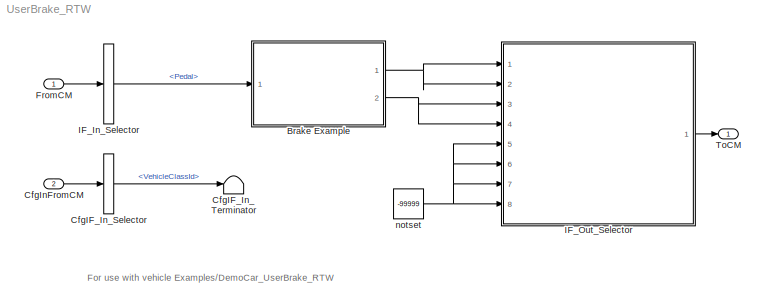
MODEL UserBrake_RTW
KIND model
CONFIG InitFcn = vehicle = 'Car'; if ~length(which('cmcmd')), cmenv; end\nUserBrake_RTW_bus
CONFIG PreLoadFcn = vehicle = 'Car'; if ~length(which('cmcmd')), cmenv; end\nUserBrake_RTW_bus
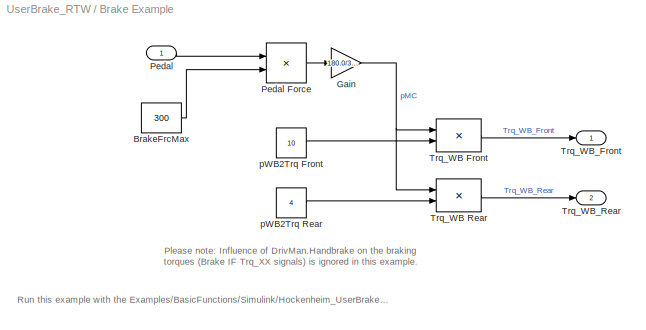
BLOCK [SubSystem] Brake Example
  Ports = [1, 2]
  RequestExecContextInheritance = off
  SID = 29
  Variant = off
BLOCK [Constant] Brake Example/BrakeFrcMax
  SID = 31
  Value = 300
BLOCK [Gain] Brake Example/Gain
  Gain = 180.0/300.0
  SID = 32
BLOCK [Inport] Brake Example/Pedal
  IconDisplay = Port number
  SID = 30
BLOCK [Product] Brake Example/Pedal Force
  Ports = [2, 1]
  RndMeth = Floor
  SID = 33
BLOCK [Product] Brake Example/Trq_WB Front
  Ports = [2, 1]
  RndMeth = Floor
  SID = 34
BLOCK [Product] Brake Example/Trq_WB Rear
  Ports = [2, 1]
  RndMeth = Floor
  SID = 35
BLOCK [Outport] Brake Example/Trq_WB_Front
  IconDisplay = Port number
  SID = 38
BLOCK [Outport] Brake Example/Trq_WB_Rear
  IconDisplay = Port number
  Port = 2
  SID = 39
BLOCK [Constant] Brake Example/pWB2Trq Front
  SID = 36
  Value = 10
BLOCK [Constant] Brake Example/pWB2Trq Rear
  SID = 37
  Value = 4
BLOCK [BusSelector] CfgIF_In_Selector
  OutputSignals = VehicleClassId
  Ports = [1, 1]
  SID = 9
BLOCK [Terminator] CfgIF_In_Terminator
  SID = 10
BLOCK [Inport] CfgInFromCM
  IconDisplay = Port number
  OutDataTypeStr = Bus: cmBrakeCfgIn
  Port = 2
  SID = 8
BLOCK [Inport] FromCM
  IconDisplay = Port number
  OutDataTypeStr = Bus: cmBrakeIn
  SID = 1
BLOCK [BusSelector] IF_In_Selector
  OutputSignals = Pedal
  Ports = [1, 1]
  SID = 2
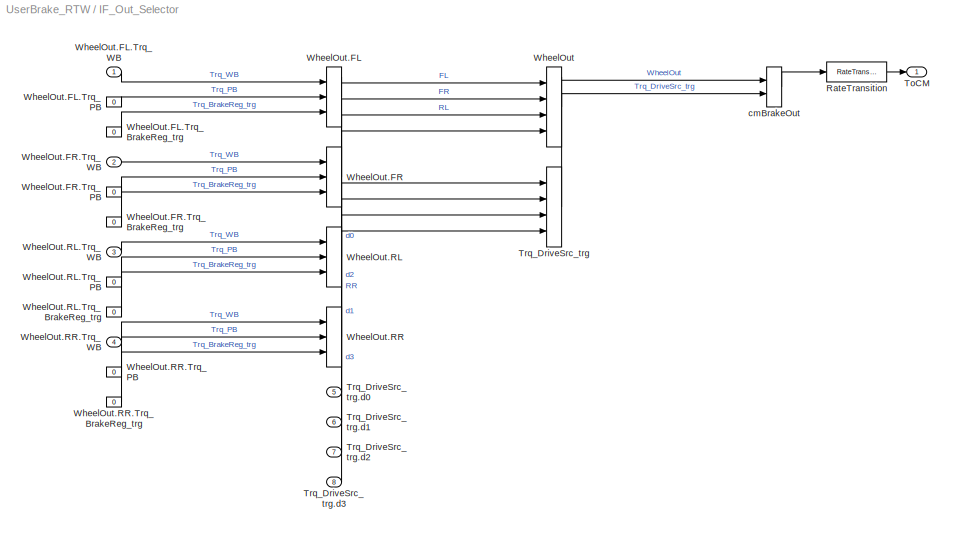
BLOCK [SubSystem] IF_Out_Selector
  OpenFcn = cmSignalSelect('SignalSelection_CB',gcb)
  Ports = [8, 1]
  RequestExecContextInheritance = off
  SID = 48
  UserData = DataTag0
  UserDataPersistent = on
  Variant = off
BLOCK [RateTransition] IF_Out_Selector/RateTransition
  OutPortSampleTime = str2num(get_param(bdroot,'FixedStep'))
  SID = 49
BLOCK [Outport] IF_Out_Selector/ToCM
  IconDisplay = Port number
  SID = 73
BLOCK [BusCreator] IF_Out_Selector/Trq_DriveSrc_trg
  InheritFromInputs = on
  Inputs = 4
  Ports = [4, 1]
  SID = 50
BLOCK [Inport] IF_Out_Selector/Trq_DriveSrc_trg.d0
  IconDisplay = Port number
  Port = 5
  SID = 78
BLOCK [Inport] IF_Out_Selector/Trq_DriveSrc_trg.d1
  IconDisplay = Port number
  Port = 6
  SID = 79
BLOCK [Inport] IF_Out_Selector/Trq_DriveSrc_trg.d2
  IconDisplay = Port number
  Port = 7
  SID = 80
BLOCK [Inport] IF_Out_Selector/Trq_DriveSrc_trg.d3
  IconDisplay = Port number
  Port = 8
  SID = 81
BLOCK [BusCreator] IF_Out_Selector/WheelOut
  InheritFromInputs = on
  Inputs = 4
  Ports = [4, 1]
  SID = 55
BLOCK [BusCreator] IF_Out_Selector/WheelOut.FL
  InheritFromInputs = on
  Inputs = 3
  Ports = [3, 1]
  SID = 56
BLOCK [Constant] IF_Out_Selector/WheelOut.FL.Trq_BrakeReg_trg
  SID = 57
  Value = 0
BLOCK [Constant] IF_Out_Selector/WheelOut.FL.Trq_PB
  SID = 58
  Value = 0
BLOCK [Inport] IF_Out_Selector/WheelOut.FL.Trq_WB
  IconDisplay = Port number
  SID = 74
BLOCK [BusCreator] IF_Out_Selector/WheelOut.FR
  InheritFromInputs = on
  Inputs = 3
  Ports = [3, 1]
  SID = 60
BLOCK [Constant] IF_Out_Selector/WheelOut.FR.Trq_BrakeReg_trg
  SID = 61
  Value = 0
BLOCK [Constant] IF_Out_Selector/WheelOut.FR.Trq_PB
  SID = 62
  Value = 0
BLOCK [Inport] IF_Out_Selector/WheelOut.FR.Trq_WB
  IconDisplay = Port number
  Port = 2
  SID = 75
BLOCK [BusCreator] IF_Out_Selector/WheelOut.RL
  InheritFromInputs = on
  Inputs = 3
  Ports = [3, 1]
  SID = 64
BLOCK [Constant] IF_Out_Selector/WheelOut.RL.Trq_BrakeReg_trg
  SID = 65
  Value = 0
BLOCK [Constant] IF_Out_Selector/WheelOut.RL.Trq_PB
  SID = 66
  Value = 0
BLOCK [Inport] IF_Out_Selector/WheelOut.RL.Trq_WB
  IconDisplay = Port number
  Port = 3
  SID = 76
BLOCK [BusCreator] IF_Out_Selector/WheelOut.RR
  InheritFromInputs = on
  Inputs = 3
  Ports = [3, 1]
  SID = 68
BLOCK [Constant] IF_Out_Selector/WheelOut.RR.Trq_BrakeReg_trg
  SID = 69
  Value = 0
BLOCK [Constant] IF_Out_Selector/WheelOut.RR.Trq_PB
  SID = 70
  Value = 0
BLOCK [Inport] IF_Out_Selector/WheelOut.RR.Trq_WB
  IconDisplay = Port number
  Port = 4
  SID = 77
BLOCK [BusCreator] IF_Out_Selector/cmBrakeOut
  InheritFromInputs = on
  Inputs = 2
  Ports = [2, 1]
  SID = 72
BLOCK [Outport] ToCM
  IconDisplay = Port number
  OutDataTypeStr = Bus: cmBrakeOut
  SID = 4
BLOCK [Constant] notset
  SID = 82
  Value = -99999
ANNOTATION (root): For use with vehicle Examples/DemoCar_UserBrake_RTW
ANNOTATION Brake Example: Please note: Influence of DrivMan.Handbrake on the braking\ntorques (Brake IF Trq_XX signals) is ignored in this example.
ANNOTATION Brake Example: Run this example with the Examples/BasicFunctions/Simulink/Hockenheim_UserBrake_RTW testrun.
LINE Brake Example/BrakeFrcMax:1 -> Brake Example/Pedal Force:2
NET Brake Example/Gain:1 -> Brake Example/Trq_WB Front:1, Brake Example/Trq_WB Rear:1
LINE Brake Example/Pedal Force:1 -> Brake Example/Gain:1
LINE Brake Example/Pedal:1 -> Brake Example/Pedal Force:1
LINE Brake Example/Trq_WB Front:1 -> Brake Example/Trq_WB_Front:1
LINE Brake Example/Trq_WB Rear:1 -> Brake Example/Trq_WB_Rear:1
LINE Brake Example/pWB2Trq Front:1 -> Brake Example/Trq_WB Front:2
LINE Brake Example/pWB2Trq Rear:1 -> Brake Example/Trq_WB Rear:2
NET Brake Example:1 -> IF_Out_Selector:1, IF_Out_Selector:2
NET Brake Example:2 -> IF_Out_Selector:3, IF_Out_Selector:4
LINE CfgIF_In_Selector:1 -> CfgIF_In_Terminator:1
LINE CfgInFromCM:1 -> CfgIF_In_Selector:1
LINE FromCM:1 -> IF_In_Selector:1
LINE IF_In_Selector:1 -> Brake Example:1
LINE IF_Out_Selector/RateTransition:1 -> IF_Out_Selector/ToCM:1
LINE IF_Out_Selector/Trq_DriveSrc_trg.d0:1 -> IF_Out_Selector/Trq_DriveSrc_trg:1
LINE IF_Out_Selector/Trq_DriveSrc_trg.d1:1 -> IF_Out_Selector/Trq_DriveSrc_trg:2
LINE IF_Out_Selector/Trq_DriveSrc_trg.d2:1 -> IF_Out_Selector/Trq_DriveSrc_trg:3
LINE IF_Out_Selector/Trq_DriveSrc_trg.d3:1 -> IF_Out_Selector/Trq_DriveSrc_trg:4
LINE IF_Out_Selector/Trq_DriveSrc_trg:1 -> IF_Out_Selector/cmBrakeOut:2
LINE IF_Out_Selector/WheelOut.FL.Trq_BrakeReg_trg:1 -> IF_Out_Selector/WheelOut.FL:3
LINE IF_Out_Selector/WheelOut.FL.Trq_PB:1 -> IF_Out_Selector/WheelOut.FL:2
LINE IF_Out_Selector/WheelOut.FL.Trq_WB:1 -> IF_Out_Selector/WheelOut.FL:1
LINE IF_Out_Selector/WheelOut.FL:1 -> IF_Out_Selector/WheelOut:1
LINE IF_Out_Selector/WheelOut.FR.Trq_BrakeReg_trg:1 -> IF_Out_Selector/WheelOut.FR:3
LINE IF_Out_Selector/WheelOut.FR.Trq_PB:1 -> IF_Out_Selector/WheelOut.FR:2
LINE IF_Out_Selector/WheelOut.FR.Trq_WB:1 -> IF_Out_Selector/WheelOut.FR:1
LINE IF_Out_Selector/WheelOut.FR:1 -> IF_Out_Selector/WheelOut:2
LINE IF_Out_Selector/WheelOut.RL.Trq_BrakeReg_trg:1 -> IF_Out_Selector/WheelOut.RL:3
LINE IF_Out_Selector/WheelOut.RL.Trq_PB:1 -> IF_Out_Selector/WheelOut.RL:2
LINE IF_Out_Selector/WheelOut.RL.Trq_WB:1 -> IF_Out_Selector/WheelOut.RL:1
LINE IF_Out_Selector/WheelOut.RL:1 -> IF_Out_Selector/WheelOut:3
LINE IF_Out_Selector/WheelOut.RR.Trq_BrakeReg_trg:1 -> IF_Out_Selector/WheelOut.RR:3
LINE IF_Out_Selector/WheelOut.RR.Trq_PB:1 -> IF_Out_Selector/WheelOut.RR:2
LINE IF_Out_Selector/WheelOut.RR.Trq_WB:1 -> IF_Out_Selector/WheelOut.RR:1
LINE IF_Out_Selector/WheelOut.RR:1 -> IF_Out_Selector/WheelOut:4
LINE IF_Out_Selector/WheelOut:1 -> IF_Out_Selector/cmBrakeOut:1
LINE IF_Out_Selector/cmBrakeOut:1 -> IF_Out_Selector/RateTransition:1
LINE IF_Out_Selector:1 -> ToCM:1
NET notset:1 -> IF_Out_Selector:5, IF_Out_Selector:6, IF_Out_Selector:7, IF_Out_Selector:8
note: NET lines group one-source signal fan-out (src -> all destinations, sorted); 1:1 wires keep LINE
